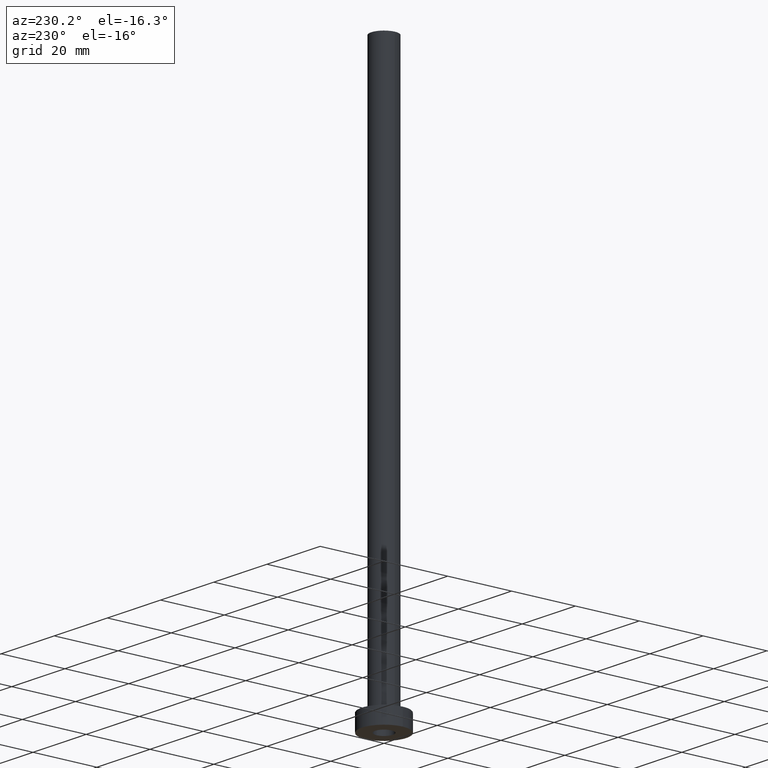
[diagram: clean part render]
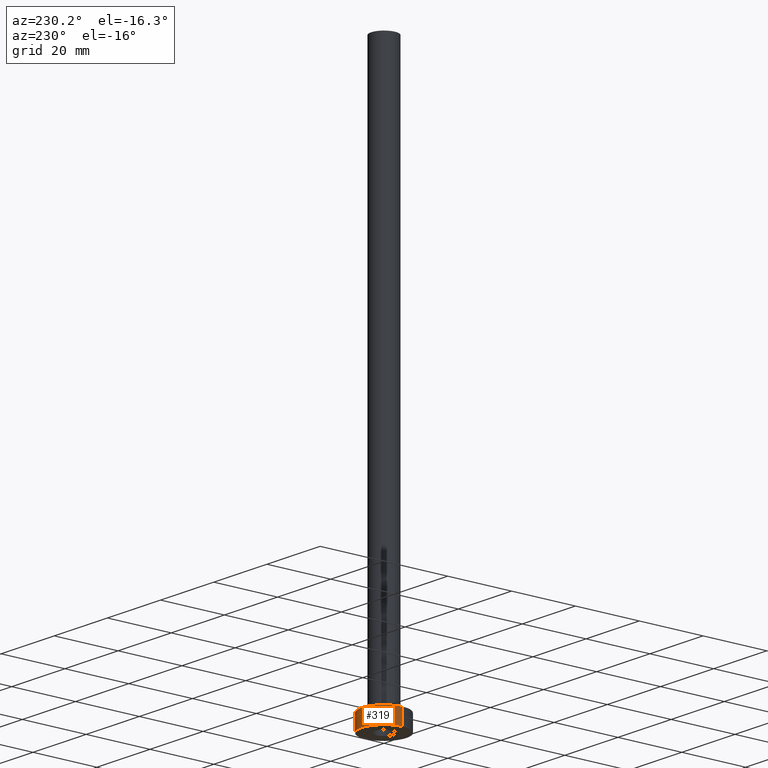
[diagram: same view with one face highlighted and labeled with its STEP entity id]
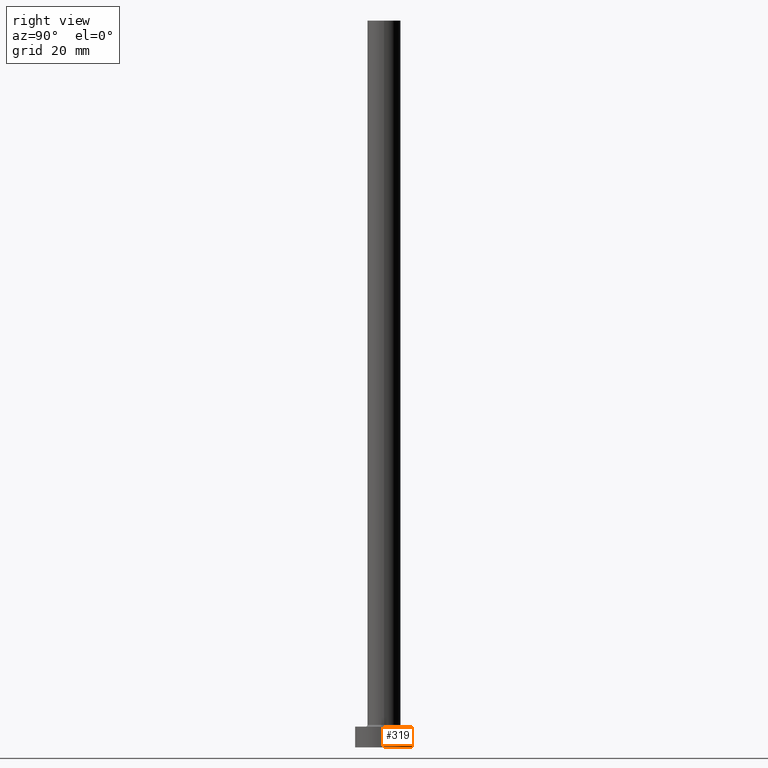
[diagram: same view with one face highlighted and labeled with its STEP entity id]
A machine part, auxiliary view. The second image highlights one B-rep face of the part: STEP entity #319.
A second angle (right view) of the same face is appended — the face is thin or edge-on in the first view.
In plain terms, the highlighted cylindrical surface (edge-blend (fillet) strip) has radius 7 mm, axis along (-0, -0, -1).
Its self-contained STEP definition (entity closure, byte-faithful):
#10 = CARTESIAN_POINT ( 'NONE',  ( 0.000000000000000000, 0.000000000000000000, 5.000000000000000000 ) ) ;
#38 = FACE_OUTER_BOUND ( 'NONE', #208, .T. ) ;
#49 = CIRCLE ( 'NONE', #180, 7.000000000000000000 ) ;
#91 = ORIENTED_EDGE ( 'NONE', *, *, #199, .F. ) ;
#98 = CIRCLE ( 'NONE', #155, 7.000000000000000000 ) ;
#99 = AXIS2_PLACEMENT_3D ( 'NONE', #10, #292, #221 ) ;
#135 = EDGE_CURVE ( 'NONE', #151, #171, #49, .T. ) ;
#150 = CARTESIAN_POINT ( 'NONE',  ( 7.000000000000000000, 8.572527594031473190E-16, 5.000000000000000000 ) ) ;
#151 = VERTEX_POINT ( 'NONE', #347 ) ;
#155 = AXIS2_PLACEMENT_3D ( 'NONE', #357, #222, #430 ) ;
#167 = CARTESIAN_POINT ( 'NONE',  ( -7.000000000000000000, 0.000000000000000000, 5.000000000000000000 ) ) ;
#171 = VERTEX_POINT ( 'NONE', #189 ) ;
#180 = AXIS2_PLACEMENT_3D ( 'NONE', #371, #200, #382 ) ;
#189 = CARTESIAN_POINT ( 'NONE',  ( -7.000000000000000000, 0.000000000000000000, 0.000000000000000000 ) ) ;
#196 = CARTESIAN_POINT ( 'NONE',  ( 7.000000000000000000, 8.572527594031473190E-16, 5.000000000000000000 ) ) ;
#199 = EDGE_CURVE ( 'NONE', #325, #267, #98, .T. ) ;
#200 = DIRECTION ( 'NONE',  ( 0.000000000000000000, 0.000000000000000000, 1.000000000000000000 ) ) ;
#208 = EDGE_LOOP ( 'NONE', ( #91, #402, #444, #438 ) ) ;
#221 = DIRECTION ( 'NONE',  ( -1.000000000000000000, 0.000000000000000000, 0.000000000000000000 ) ) ;
#222 = DIRECTION ( 'NONE',  ( 0.000000000000000000, 0.000000000000000000, 1.000000000000000000 ) ) ;
#258 = CARTESIAN_POINT ( 'NONE',  ( -7.000000000000000000, 0.000000000000000000, 5.000000000000000000 ) ) ;
#267 = VERTEX_POINT ( 'NONE', #258 ) ;
#292 = DIRECTION ( 'NONE',  ( -0.000000000000000000, -0.000000000000000000, -1.000000000000000000 ) ) ;
#306 = VECTOR ( 'NONE', #336, 1000.000000000000000 ) ;
#319 = ADVANCED_FACE ( 'NONE', ( #38 ), #326, .T. ) ;
#325 = VERTEX_POINT ( 'NONE', #150 ) ;
#326 = CYLINDRICAL_SURFACE ( 'NONE', #99, 7.000000000000000000 ) ;
#336 = DIRECTION ( 'NONE',  ( -0.000000000000000000, -0.000000000000000000, -1.000000000000000000 ) ) ;
#337 = EDGE_CURVE ( 'NONE', #325, #151, #407, .T. ) ;
#347 = CARTESIAN_POINT ( 'NONE',  ( 7.000000000000000000, 8.572527594031473190E-16, 0.000000000000000000 ) ) ;
#356 = VECTOR ( 'NONE', #398, 1000.000000000000000 ) ;
#357 = CARTESIAN_POINT ( 'NONE',  ( 0.000000000000000000, 0.000000000000000000, 5.000000000000000000 ) ) ;
#371 = CARTESIAN_POINT ( 'NONE',  ( 0.000000000000000000, 0.000000000000000000, 0.000000000000000000 ) ) ;
#382 = DIRECTION ( 'NONE',  ( 1.000000000000000000, 0.000000000000000000, 0.000000000000000000 ) ) ;
#387 = EDGE_CURVE ( 'NONE', #267, #171, #439, .T. ) ;
#398 = DIRECTION ( 'NONE',  ( -0.000000000000000000, -0.000000000000000000, -1.000000000000000000 ) ) ;
#402 = ORIENTED_EDGE ( 'NONE', *, *, #337, .T. ) ;
#407 = LINE ( 'NONE', #196, #356 ) ;
#430 = DIRECTION ( 'NONE',  ( 1.000000000000000000, 0.000000000000000000, 0.000000000000000000 ) ) ;
#438 = ORIENTED_EDGE ( 'NONE', *, *, #387, .F. ) ;
#439 = LINE ( 'NONE', #167, #306 ) ;
#444 = ORIENTED_EDGE ( 'NONE', *, *, #135, .T. ) ;